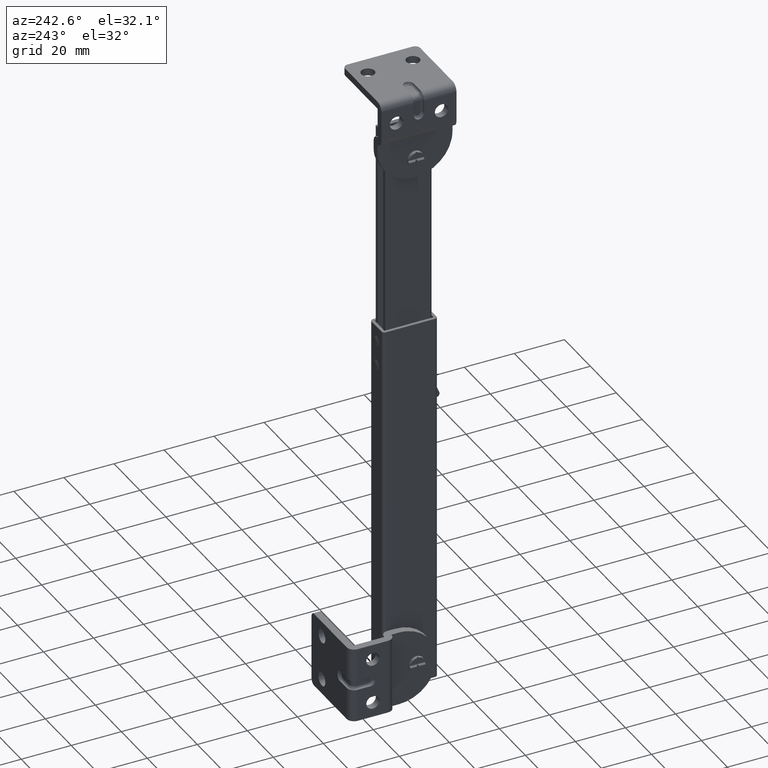
[diagram: clean part render]
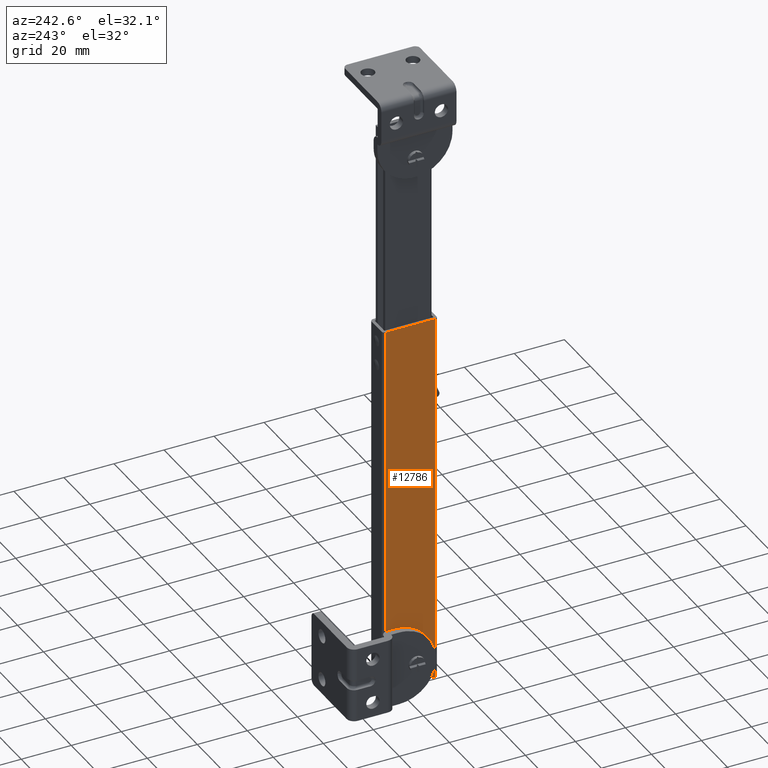
[diagram: same view with one face highlighted and labeled with its STEP entity id]
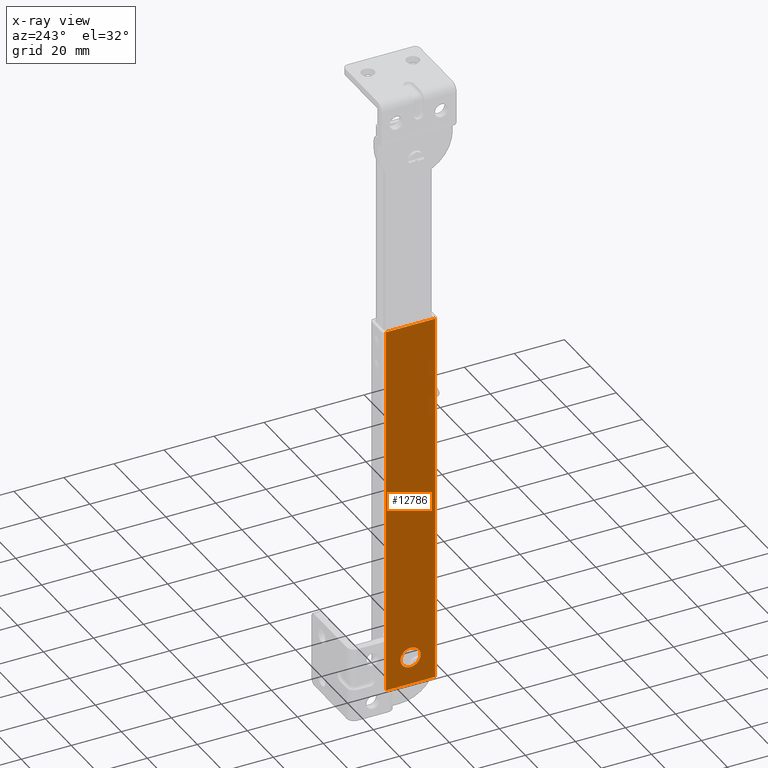
[diagram: x-ray of the same camera — body ghosted, the highlighted face saturated]
A machine part, auxiliary view. The second image highlights one B-rep face of the part: STEP entity #12786.
The next image is the same camera in x-ray: the body ghosted, the highlighted face saturated — about 0% of this face is hidden behind the body in this view.
In plain terms, the highlighted face is a freeform B-spline surface patch.
Its self-contained STEP definition (entity closure, byte-faithful):
#11206=CARTESIAN_POINT('',(-10.0,-3.987669334732080,0.313836385458106));
#11207=VERTEX_POINT('',#11206);
#11213=CARTESIAN_POINT('',(-10.0,0.0,4.0));
#11214=VERTEX_POINT('',#11213);
#11215=CARTESIAN_POINT('',(-10.0,0.0,4.0));
#11216=CARTESIAN_POINT('',(-10.000000000000002,-3.697561961895326,4.0));
#11217=CARTESIAN_POINT('',(-10.000000000000002,-3.987669334732080,0.313836385458106));
#11225=(BOUNDED_CURVE()B_SPLINE_CURVE(2,(#11215,#11216,#11217),.UNSPECIFIED.,.F.,.U.)B_SPLINE_CURVE_WITH_KNOTS((3,3),(0.0,0.236331300413806),.UNSPECIFIED.)CURVE()GEOMETRIC_REPRESENTATION_ITEM()RATIONAL_B_SPLINE_CURVE((1.0,0.723120658861725,0.969723355714861))REPRESENTATION_ITEM(''));
#11226=EDGE_CURVE('',#11214,#11207,#11225,.T.);
#11228=CARTESIAN_POINT('',(-10.0,3.987669334732080,-0.313836385458105));
#11229=VERTEX_POINT('',#11228);
#11230=CARTESIAN_POINT('',(-10.000000000000002,3.987669334732080,-0.313836385458105));
#11231=CARTESIAN_POINT('',(-10.000000000000002,4.000000000000001,-0.157160430589221));
#11232=CARTESIAN_POINT('',(-10.0,4.0,0.0));
#11233=CARTESIAN_POINT('',(-10.000000000000002,4.000000000000000,4.000000000000000));
#11234=CARTESIAN_POINT('',(-10.0,0.0,4.0));
#11242=(BOUNDED_CURVE()B_SPLINE_CURVE(2,(#11230,#11231,#11232,#11233,#11234),.UNSPECIFIED.,.F.,.U.)B_SPLINE_CURVE_WITH_KNOTS((3,2,3),(0.736331300413806,0.750000000000000,1.0),.UNSPECIFIED.)CURVE()GEOMETRIC_REPRESENTATION_ITEM()RATIONAL_B_SPLINE_CURVE((0.969723355714862,0.983986122324823,1.0,0.707106781186548,1.0))REPRESENTATION_ITEM(''));
#11243=EDGE_CURVE('',#11229,#11214,#11242,.T.);
#11319=CARTESIAN_POINT('',(-10.0,0.0,-4.0));
#11320=VERTEX_POINT('',#11319);
#11321=CARTESIAN_POINT('',(-10.0,0.0,-4.0));
#11322=CARTESIAN_POINT('',(-10.0,3.697561961895313,-4.000000000000000));
#11323=CARTESIAN_POINT('',(-10.0,3.987669334732079,-0.313836385458105));
#11331=(BOUNDED_CURVE()B_SPLINE_CURVE(2,(#11321,#11322,#11323),.UNSPECIFIED.,.F.,.U.)B_SPLINE_CURVE_WITH_KNOTS((3,3),(0.500000000000000,0.736331300413806),.UNSPECIFIED.)CURVE()GEOMETRIC_REPRESENTATION_ITEM()RATIONAL_B_SPLINE_CURVE((1.0,0.723120658861726,0.969723355714860))REPRESENTATION_ITEM(''));
#11332=EDGE_CURVE('',#11320,#11229,#11331,.T.);
#11334=CARTESIAN_POINT('',(-10.000000000000002,-3.987669334732080,0.313836385458106));
#11335=CARTESIAN_POINT('',(-10.000000000000002,-4.0,0.157160430589222));
#11336=CARTESIAN_POINT('',(-10.0,-4.0,0.0));
#11337=CARTESIAN_POINT('',(-10.000000000000002,-4.000000000000000,-4.000000000000000));
#11338=CARTESIAN_POINT('',(-10.0,0.0,-4.0));
#11346=(BOUNDED_CURVE()B_SPLINE_CURVE(2,(#11334,#11335,#11336,#11337,#11338),.UNSPECIFIED.,.F.,.U.)B_SPLINE_CURVE_WITH_KNOTS((3,2,3),(0.236331300413806,0.250000000000000,0.500000000000000),.UNSPECIFIED.)CURVE()GEOMETRIC_REPRESENTATION_ITEM()RATIONAL_B_SPLINE_CURVE((0.969723355714862,0.983986122324823,1.0,0.707106781186548,1.0))REPRESENTATION_ITEM(''));
#11347=EDGE_CURVE('',#11207,#11320,#11346,.T.);
#12297=CARTESIAN_POINT('',(-10.0,9.802682279935349,139.0));
#12298=VERTEX_POINT('',#12297);
#12312=CARTESIAN_POINT('',(-10.0,-9.802686279935349,139.0));
#12313=VERTEX_POINT('',#12312);
#12314=CARTESIAN_POINT('',(-10.0,-9.802686279935349,139.0));
#12315=CARTESIAN_POINT('',(-10.0,9.802682279935349,139.0));
#12316=QUASI_UNIFORM_CURVE('',1,(#12314,#12315),.UNSPECIFIED.,.F.,.U.);
#12317=EDGE_CURVE('',#12313,#12298,#12316,.T.);
#12379=CARTESIAN_POINT('',(-10.0,-9.802686279935349,-11.0));
#12380=VERTEX_POINT('',#12379);
#12394=CARTESIAN_POINT('',(-10.0,9.802682279935349,-11.0));
#12395=VERTEX_POINT('',#12394);
#12396=CARTESIAN_POINT('',(-10.0,-9.802686279935349,-11.0));
#12397=CARTESIAN_POINT('',(-10.0,9.802682279935349,-11.0));
#12398=QUASI_UNIFORM_CURVE('',1,(#12396,#12397),.UNSPECIFIED.,.F.,.U.);
#12399=EDGE_CURVE('',#12380,#12395,#12398,.T.);
#12570=CARTESIAN_POINT('',(-10.0,9.802682279935349,-11.0));
#12571=CARTESIAN_POINT('',(-10.0,9.802682279935349,139.0));
#12572=QUASI_UNIFORM_CURVE('',1,(#12570,#12571),.UNSPECIFIED.,.F.,.U.);
#12573=EDGE_CURVE('',#12395,#12298,#12572,.T.);
#12593=CARTESIAN_POINT('',(-10.0,-9.802686279935349,-11.0));
#12594=CARTESIAN_POINT('',(-10.0,-9.802686279935349,139.0));
#12595=QUASI_UNIFORM_CURVE('',1,(#12593,#12594),.UNSPECIFIED.,.F.,.U.);
#12596=EDGE_CURVE('',#12380,#12313,#12595,.T.);
#12769=CARTESIAN_POINT('',(-10.0,-10.781974883581251,146.492499709270900));
#12770=CARTESIAN_POINT('',(-10.0,-10.781974883581251,-18.492503732584421));
#12771=CARTESIAN_POINT('',(-10.0,10.781969481296020,146.492499709270900));
#12772=CARTESIAN_POINT('',(-10.0,10.781969481296020,-18.492503732584421));
#12773=B_SPLINE_SURFACE_WITH_KNOTS('',1,1,((#12769,#12771),(#12770,#12772)),.UNSPECIFIED.,.F.,.F.,.U.,(2,2),(2,2),(0.0,164.985003441855300),(0.0,21.563944364877269),.UNSPECIFIED.);
#12774=ORIENTED_EDGE('',*,*,#12317,.T.);
#12775=ORIENTED_EDGE('',*,*,#12573,.F.);
#12776=ORIENTED_EDGE('',*,*,#12399,.F.);
#12777=ORIENTED_EDGE('',*,*,#12596,.T.);
#12778=EDGE_LOOP('',(#12774,#12775,#12776,#12777));
#12779=FACE_OUTER_BOUND('',#12778,.T.);
#12780=ORIENTED_EDGE('',*,*,#11332,.T.);
#12781=ORIENTED_EDGE('',*,*,#11243,.T.);
#12782=ORIENTED_EDGE('',*,*,#11226,.T.);
#12783=ORIENTED_EDGE('',*,*,#11347,.T.);
#12784=EDGE_LOOP('',(#12780,#12781,#12782,#12783));
#12785=FACE_BOUND('',#12784,.T.);
#12786=ADVANCED_FACE('',(#12779,#12785),#12773,.F.);